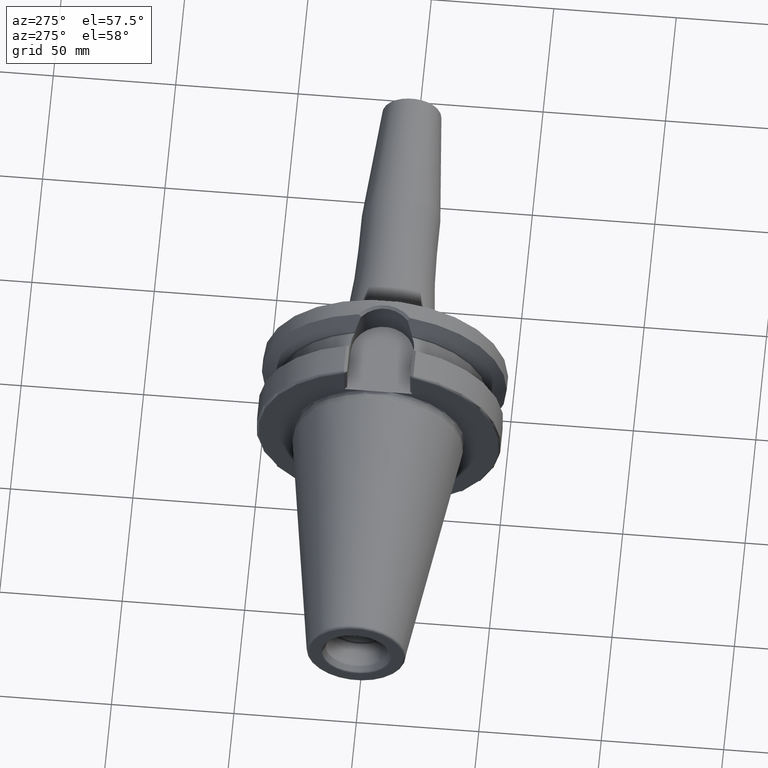
[diagram: clean part render]
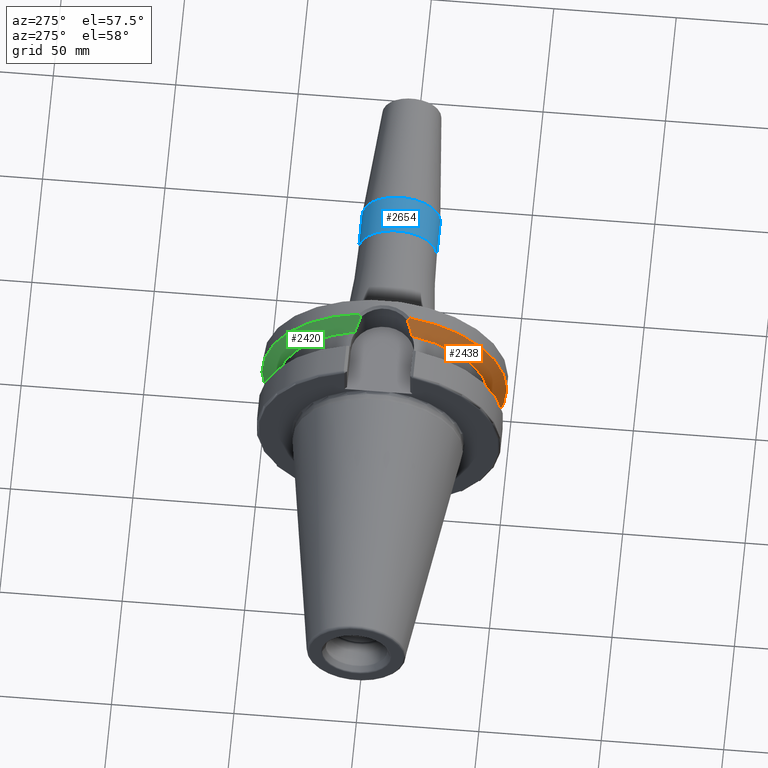
[diagram: same view with three faces highlighted in distinct colors, each labeled with its STEP entity id]
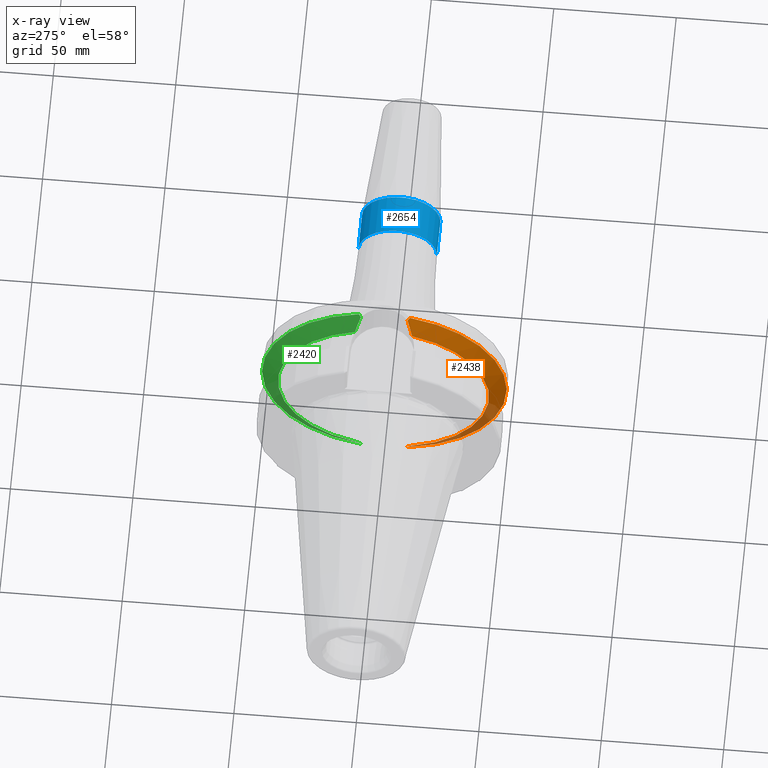
[diagram: x-ray of the same camera — body ghosted, the three highlighted faces saturated]
A machine part, auxiliary view with three faces highlighted in distinct colors.
The next image is the same camera in x-ray (body ghosted, the three faces saturated) — at least one of them is partly hidden behind the body in this view.
Their STEP definitions:

[orange] entity #2438 — the highlighted conical surface has half-angle 60 deg.
#245=CARTESIAN_POINT('',(3.073066823617E1,0.E0,0.E0));
#246=DIRECTION('',(1.E0,0.E0,0.E0));
#247=DIRECTION('',(0.E0,-1.E0,0.E0));
#248=AXIS2_PLACEMENT_3D('',#245,#246,#247);
#391=CARTESIAN_POINT('',(3.016210431090E1,-9.422168385896E0,-4.808834737145E1));
#392=CARTESIAN_POINT('',(2.984184465633E1,-9.721776927818E0,-4.746439031418E1));
#393=CARTESIAN_POINT('',(2.916110296190E1,-1.029742776940E1,-4.613939859477E1));
#394=CARTESIAN_POINT('',(2.801848253867E1,-1.107377940524E1,-4.392131510326E1));
#395=CARTESIAN_POINT('',(2.717774587881E1,-1.152030945269E1,-4.229484073698E1));
#396=CARTESIAN_POINT('',(2.67375E1,-1.172273032403E1,-4.144514217760E1));
#509=CARTESIAN_POINT('',(2.67375E1,-1.172273032403E1,4.144514217760E1));
#510=CARTESIAN_POINT('',(2.716326249817E1,-1.152696877347E1,4.226688702234E1));
#511=CARTESIAN_POINT('',(2.797767730262E1,-1.109641946289E1,4.384231514855E1));
#512=CARTESIAN_POINT('',(2.908877542636E1,-1.035012398508E1,4.599886190686E1));
#513=CARTESIAN_POINT('',(2.975376209181E1,-9.797469511785E0,4.729292626465E1));
#514=CARTESIAN_POINT('',(3.006746015187E1,-9.509826559925E0,4.790397267337E1));
#763=CARTESIAN_POINT('',(2.67375E1,0.E0,0.E0));
#764=DIRECTION('',(-1.E0,0.E0,0.E0));
#765=DIRECTION('',(0.E0,-2.721714149834E-1,-9.622487832499E-1));
#766=AXIS2_PLACEMENT_3D('',#763,#764,#765);
#768=CARTESIAN_POINT('',(3.073066823617E1,-1.024362896192E1,-4.892666166765E1));
#769=CARTESIAN_POINT('',(3.066616058198E1,-1.015105563406E1,-4.883189036884E1));
#770=CARTESIAN_POINT('',(3.053803749239E1,-9.966777409929E0,-4.864343408956E1));
#771=CARTESIAN_POINT('',(3.034851551012E1,-9.692952413043E0,-4.836399253968E1));
#772=CARTESIAN_POINT('',(3.022394652802E1,-9.512141392294E0,-4.817986911933E1));
#773=CARTESIAN_POINT('',(3.016210431090E1,-9.422168385896E0,-4.808834737145E1));
#792=CARTESIAN_POINT('',(3.073066823617E1,0.E0,0.E0));
#793=DIRECTION('',(1.E0,0.E0,0.E0));
#794=DIRECTION('',(0.E0,-2.094051574285E-1,9.778289625708E-1));
#795=AXIS2_PLACEMENT_3D('',#792,#793,#794);
#975=CARTESIAN_POINT('',(3.006746015187E1,-9.509826559925E0,4.790397267337E1));
#976=CARTESIAN_POINT('',(3.013934013849E1,-9.614488815529E0,4.801012460295E1));
#977=CARTESIAN_POINT('',(3.028430182064E1,-9.824984272055E0,4.822389705980E1));
#978=CARTESIAN_POINT('',(3.050537248019E1,-1.014426259119E1,4.854898701617E1));
#979=CARTESIAN_POINT('',(3.065516521337E1,-1.035945529402E1,4.876865319706E1));
#980=CARTESIAN_POINT('',(3.073066823617E1,-1.046764030696E1,4.887922526651E1));
#1232=CARTESIAN_POINT('',(2.67375E1,-1.172273032403E1,-4.144514217760E1));
#1233=CARTESIAN_POINT('',(2.67375E1,-1.172273032403E1,4.144514217760E1));
#1234=VERTEX_POINT('',#1232);
#1235=VERTEX_POINT('',#1233);
#1248=CARTESIAN_POINT('',(3.073066823617E1,-4.99875E1,-1.224340637448E-14));
#1249=CARTESIAN_POINT('',(3.073066823617E1,-1.024362896192E1,
-4.892666166765E1));
#1250=VERTEX_POINT('',#1248);
#1251=VERTEX_POINT('',#1249);
#1256=CARTESIAN_POINT('',(3.073066823617E1,-1.046764030696E1,4.887922526651E1));
#1257=VERTEX_POINT('',#1256);
#1348=VERTEX_POINT('',#514);
#1356=VERTEX_POINT('',#391);
#2421=CARTESIAN_POINT('',(2.873408411809E1,0.E0,0.E0));
#2422=DIRECTION('',(1.E0,0.E0,0.E0));
#2423=DIRECTION('',(0.E0,-1.E0,0.E0));
#2424=AXIS2_PLACEMENT_3D('',#2421,#2422,#2423);
#2425=CONICAL_SURFACE('',#2424,4.652931486589E1,6.E1);
#2427=ORIENTED_EDGE('',*,*,#2426,.T.);
#2428=ORIENTED_EDGE('',*,*,#1777,.T.);
#2430=ORIENTED_EDGE('',*,*,#2429,.T.);
#2431=ORIENTED_EDGE('',*,*,#1900,.T.);
#2432=ORIENTED_EDGE('',*,*,#1945,.T.);
#2433=ORIENTED_EDGE('',*,*,#1996,.T.);
#2435=ORIENTED_EDGE('',*,*,#2434,.T.);
#2436=EDGE_LOOP('',(#2427,#2428,#2430,#2431,#2432,#2433,#2435));
#2437=FACE_OUTER_BOUND('',#2436,.F.);
#2438=ADVANCED_FACE('',(#2437),#2425,.T.);
#249=CIRCLE('',#248,4.99875E1);
#397=B_SPLINE_CURVE_WITH_KNOTS('',3,(#391,#392,#393,#394,#395,#396),
.UNSPECIFIED.,.F.,.F.,(4,1,1,4),(0.E0,3.333333333333E-1,6.666666666667E-1,1.E0),
.UNSPECIFIED.);
#515=B_SPLINE_CURVE_WITH_KNOTS('',3,(#509,#510,#511,#512,#513,#514),
.UNSPECIFIED.,.F.,.F.,(4,1,1,4),(0.E0,3.333333333333E-1,6.666666666667E-1,1.E0),
.UNSPECIFIED.);
#767=CIRCLE('',#766,4.307112973177E1);
#774=B_SPLINE_CURVE_WITH_KNOTS('',3,(#768,#769,#770,#771,#772,#773),
.UNSPECIFIED.,.F.,.F.,(4,1,1,4),(0.E0,3.333333333333E-1,6.666666666667E-1,1.E0),
.UNSPECIFIED.);
#796=CIRCLE('',#795,4.99875E1);
#981=B_SPLINE_CURVE_WITH_KNOTS('',3,(#975,#976,#977,#978,#979,#980),
.UNSPECIFIED.,.F.,.F.,(4,1,1,4),(0.E0,3.333333333333E-1,6.666666666667E-1,1.E0),
.UNSPECIFIED.);
#1777=EDGE_CURVE('',#1250,#1251,#249,.T.);
#1900=EDGE_CURVE('',#1356,#1234,#397,.T.);
#1945=EDGE_CURVE('',#1234,#1235,#767,.T.);
#1996=EDGE_CURVE('',#1235,#1348,#515,.T.);
#2426=EDGE_CURVE('',#1257,#1250,#796,.T.);
#2429=EDGE_CURVE('',#1251,#1356,#774,.T.);
#2434=EDGE_CURVE('',#1348,#1257,#981,.T.);

[blue] entity #2654 — the highlighted cylindrical surface (partial cylindrical patch) has radius 16 mm, axis along (1, 0, 0).
#879=DIRECTION('',(-1.E0,0.E0,0.E0));
#880=VECTOR('',#879,1.617518105530E1);
#881=CARTESIAN_POINT('',(1.091751810553E2,-1.6E1,0.E0));
#882=LINE('',#881,#880);
#888=DIRECTION('',(-1.E0,0.E0,0.E0));
#889=VECTOR('',#888,1.617518105530E1);
#890=CARTESIAN_POINT('',(1.091751810553E2,1.6E1,0.E0));
#891=LINE('',#890,#889);
#892=CARTESIAN_POINT('',(9.3E1,0.E0,0.E0));
#893=DIRECTION('',(1.E0,0.E0,0.E0));
#894=DIRECTION('',(0.E0,1.E0,0.E0));
#895=AXIS2_PLACEMENT_3D('',#892,#893,#894);
#897=CARTESIAN_POINT('',(1.091751810553E2,0.E0,0.E0));
#898=DIRECTION('',(1.E0,0.E0,0.E0));
#899=DIRECTION('',(0.E0,1.E0,0.E0));
#900=AXIS2_PLACEMENT_3D('',#897,#898,#899);
#1411=CARTESIAN_POINT('',(1.091751810553E2,1.6E1,0.E0));
#1412=CARTESIAN_POINT('',(1.091751810553E2,-1.6E1,0.E0));
#1413=VERTEX_POINT('',#1411);
#1414=VERTEX_POINT('',#1412);
#1431=CARTESIAN_POINT('',(9.3E1,1.6E1,0.E0));
#1432=CARTESIAN_POINT('',(9.3E1,-1.6E1,0.E0));
#1433=VERTEX_POINT('',#1431);
#1434=VERTEX_POINT('',#1432);
#2642=CARTESIAN_POINT('',(3.19E1,0.E0,0.E0));
#2643=DIRECTION('',(1.E0,0.E0,0.E0));
#2644=DIRECTION('',(0.E0,-1.E0,0.E0));
#2645=AXIS2_PLACEMENT_3D('',#2642,#2643,#2644);
#2646=CYLINDRICAL_SURFACE('',#2645,1.6E1);
#2647=ORIENTED_EDGE('',*,*,#2607,.F.);
#2648=ORIENTED_EDGE('',*,*,#2637,.F.);
#2650=ORIENTED_EDGE('',*,*,#2649,.T.);
#2651=ORIENTED_EDGE('',*,*,#2633,.T.);
#2652=EDGE_LOOP('',(#2647,#2648,#2650,#2651));
#2653=FACE_OUTER_BOUND('',#2652,.F.);
#2654=ADVANCED_FACE('',(#2653),#2646,.T.);
#896=CIRCLE('',#895,1.6E1);
#901=CIRCLE('',#900,1.6E1);
#2607=EDGE_CURVE('',#1433,#1434,#896,.T.);
#2633=EDGE_CURVE('',#1414,#1434,#882,.T.);
#2637=EDGE_CURVE('',#1413,#1433,#891,.T.);
#2649=EDGE_CURVE('',#1413,#1414,#901,.T.);

[green] entity #2420 — the highlighted conical surface has half-angle 60 deg.
#263=CARTESIAN_POINT('',(3.073066823617E1,0.E0,0.E0));
#264=DIRECTION('',(1.E0,0.E0,0.E0));
#265=DIRECTION('',(0.E0,2.049238320147E-1,-9.787779232657E-1));
#266=AXIS2_PLACEMENT_3D('',#263,#264,#265);
#415=CARTESIAN_POINT('',(2.67375E1,1.172273032403E1,-4.144514217760E1));
#416=CARTESIAN_POINT('',(2.717755273188E1,1.152039825981E1,-4.229446795287E1));
#417=CARTESIAN_POINT('',(2.801804260532E1,1.107404406164E1,-4.392046244152E1));
#418=CARTESIAN_POINT('',(2.916093120674E1,1.029757215552E1,-4.613906421021E1));
#419=CARTESIAN_POINT('',(2.984177307163E1,9.721843848552E0,-4.746425084782E1));
#420=CARTESIAN_POINT('',(3.016210355788E1,9.422169090361E0,-4.808834590435E1));
#485=CARTESIAN_POINT('',(3.006745596523E1,9.509830398822E0,4.790396451831E1));
#486=CARTESIAN_POINT('',(2.975376574683E1,9.797465906135E0,4.729293338983E1));
#487=CARTESIAN_POINT('',(2.908879078217E1,1.035010846105E1,4.599889189585E1));
#488=CARTESIAN_POINT('',(2.797778721927E1,1.109635283633E1,4.384252820130E1));
#489=CARTESIAN_POINT('',(2.716331106798E1,1.152694644153E1,4.226698076473E1));
#490=CARTESIAN_POINT('',(2.67375E1,1.172273032403E1,4.144514217760E1));
#758=CARTESIAN_POINT('',(2.67375E1,0.E0,0.E0));
#759=DIRECTION('',(-1.E0,0.E0,0.E0));
#760=DIRECTION('',(0.E0,2.721714149834E-1,9.622487832499E-1));
#761=AXIS2_PLACEMENT_3D('',#758,#759,#760);
#775=CARTESIAN_POINT('',(3.016210355788E1,9.422169090361E0,-4.808834590435E1));
#776=CARTESIAN_POINT('',(3.022394586618E1,9.512142137117E0,-4.817986780383E1));
#777=CARTESIAN_POINT('',(3.034851502566E1,9.692953240337E0,-4.836399151813E1));
#778=CARTESIAN_POINT('',(3.053803725886E1,9.966778365933E0,-4.864343348084E1));
#779=CARTESIAN_POINT('',(3.066616050581E1,1.015105667945E1,-4.883189001679E1));
#780=CARTESIAN_POINT('',(3.073066823617E1,1.024363005283E1,-4.892666143925E1));
#782=CARTESIAN_POINT('',(3.073066823617E1,0.E0,0.E0));
#783=DIRECTION('',(1.E0,0.E0,0.E0));
#784=DIRECTION('',(0.E0,1.E0,0.E0));
#785=AXIS2_PLACEMENT_3D('',#782,#783,#784);
#968=CARTESIAN_POINT('',(3.073066823617E1,1.046765017837E1,4.887922315251E1));
#969=CARTESIAN_POINT('',(3.065516473864E1,1.035946447073E1,4.876865040800E1));
#970=CARTESIAN_POINT('',(3.050537106240E1,1.014427039488E1,4.854898287946E1));
#971=CARTESIAN_POINT('',(3.028429900742E1,9.824990065200E0,4.822389090934E1));
#972=CARTESIAN_POINT('',(3.013933640756E1,9.614493300520E0,4.801011711517E1));
#973=CARTESIAN_POINT('',(3.006745596523E1,9.509830398822E0,4.790396451831E1));
#1228=CARTESIAN_POINT('',(2.67375E1,1.172273032403E1,4.144514217760E1));
#1229=CARTESIAN_POINT('',(2.67375E1,1.172273032403E1,-4.144514217760E1));
#1230=VERTEX_POINT('',#1228);
#1231=VERTEX_POINT('',#1229);
#1244=CARTESIAN_POINT('',(3.073066823617E1,4.99875E1,0.E0));
#1245=CARTESIAN_POINT('',(3.073066823617E1,1.046765017837E1,4.887922315251E1));
#1246=VERTEX_POINT('',#1244);
#1247=VERTEX_POINT('',#1245);
#1258=CARTESIAN_POINT('',(3.073066823617E1,1.024363005283E1,-4.892666143925E1));
#1259=VERTEX_POINT('',#1258);
#1349=VERTEX_POINT('',#485);
#1357=VERTEX_POINT('',#420);
#2403=CARTESIAN_POINT('',(2.873408411809E1,0.E0,0.E0));
#2404=DIRECTION('',(1.E0,0.E0,0.E0));
#2405=DIRECTION('',(0.E0,-1.E0,0.E0));
#2406=AXIS2_PLACEMENT_3D('',#2403,#2404,#2405);
#2407=CONICAL_SURFACE('',#2406,4.652931486589E1,6.E1);
#2408=ORIENTED_EDGE('',*,*,#1929,.T.);
#2409=ORIENTED_EDGE('',*,*,#1904,.T.);
#2411=ORIENTED_EDGE('',*,*,#2410,.T.);
#2412=ORIENTED_EDGE('',*,*,#1785,.T.);
#2414=ORIENTED_EDGE('',*,*,#2413,.T.);
#2416=ORIENTED_EDGE('',*,*,#2415,.T.);
#2417=ORIENTED_EDGE('',*,*,#1992,.T.);
#2418=EDGE_LOOP('',(#2408,#2409,#2411,#2412,#2414,#2416,#2417));
#2419=FACE_OUTER_BOUND('',#2418,.F.);
#2420=ADVANCED_FACE('',(#2419),#2407,.T.);
#267=CIRCLE('',#266,4.99875E1);
#421=B_SPLINE_CURVE_WITH_KNOTS('',3,(#415,#416,#417,#418,#419,#420),
.UNSPECIFIED.,.F.,.F.,(4,1,1,4),(0.E0,3.333333333333E-1,6.666666666667E-1,1.E0),
.UNSPECIFIED.);
#491=B_SPLINE_CURVE_WITH_KNOTS('',3,(#485,#486,#487,#488,#489,#490),
.UNSPECIFIED.,.F.,.F.,(4,1,1,4),(0.E0,3.333333333333E-1,6.666666666667E-1,1.E0),
.UNSPECIFIED.);
#762=CIRCLE('',#761,4.307112973177E1);
#781=B_SPLINE_CURVE_WITH_KNOTS('',3,(#775,#776,#777,#778,#779,#780),
.UNSPECIFIED.,.F.,.F.,(4,1,1,4),(0.E0,3.333333333333E-1,6.666666666667E-1,1.E0),
.UNSPECIFIED.);
#786=CIRCLE('',#785,4.99875E1);
#974=B_SPLINE_CURVE_WITH_KNOTS('',3,(#968,#969,#970,#971,#972,#973),
.UNSPECIFIED.,.F.,.F.,(4,1,1,4),(0.E0,3.333333333333E-1,6.666666666667E-1,1.E0),
.UNSPECIFIED.);
#1785=EDGE_CURVE('',#1259,#1246,#267,.T.);
#1904=EDGE_CURVE('',#1231,#1357,#421,.T.);
#1929=EDGE_CURVE('',#1230,#1231,#762,.T.);
#1992=EDGE_CURVE('',#1349,#1230,#491,.T.);
#2410=EDGE_CURVE('',#1357,#1259,#781,.T.);
#2413=EDGE_CURVE('',#1246,#1247,#786,.T.);
#2415=EDGE_CURVE('',#1247,#1349,#974,.T.);